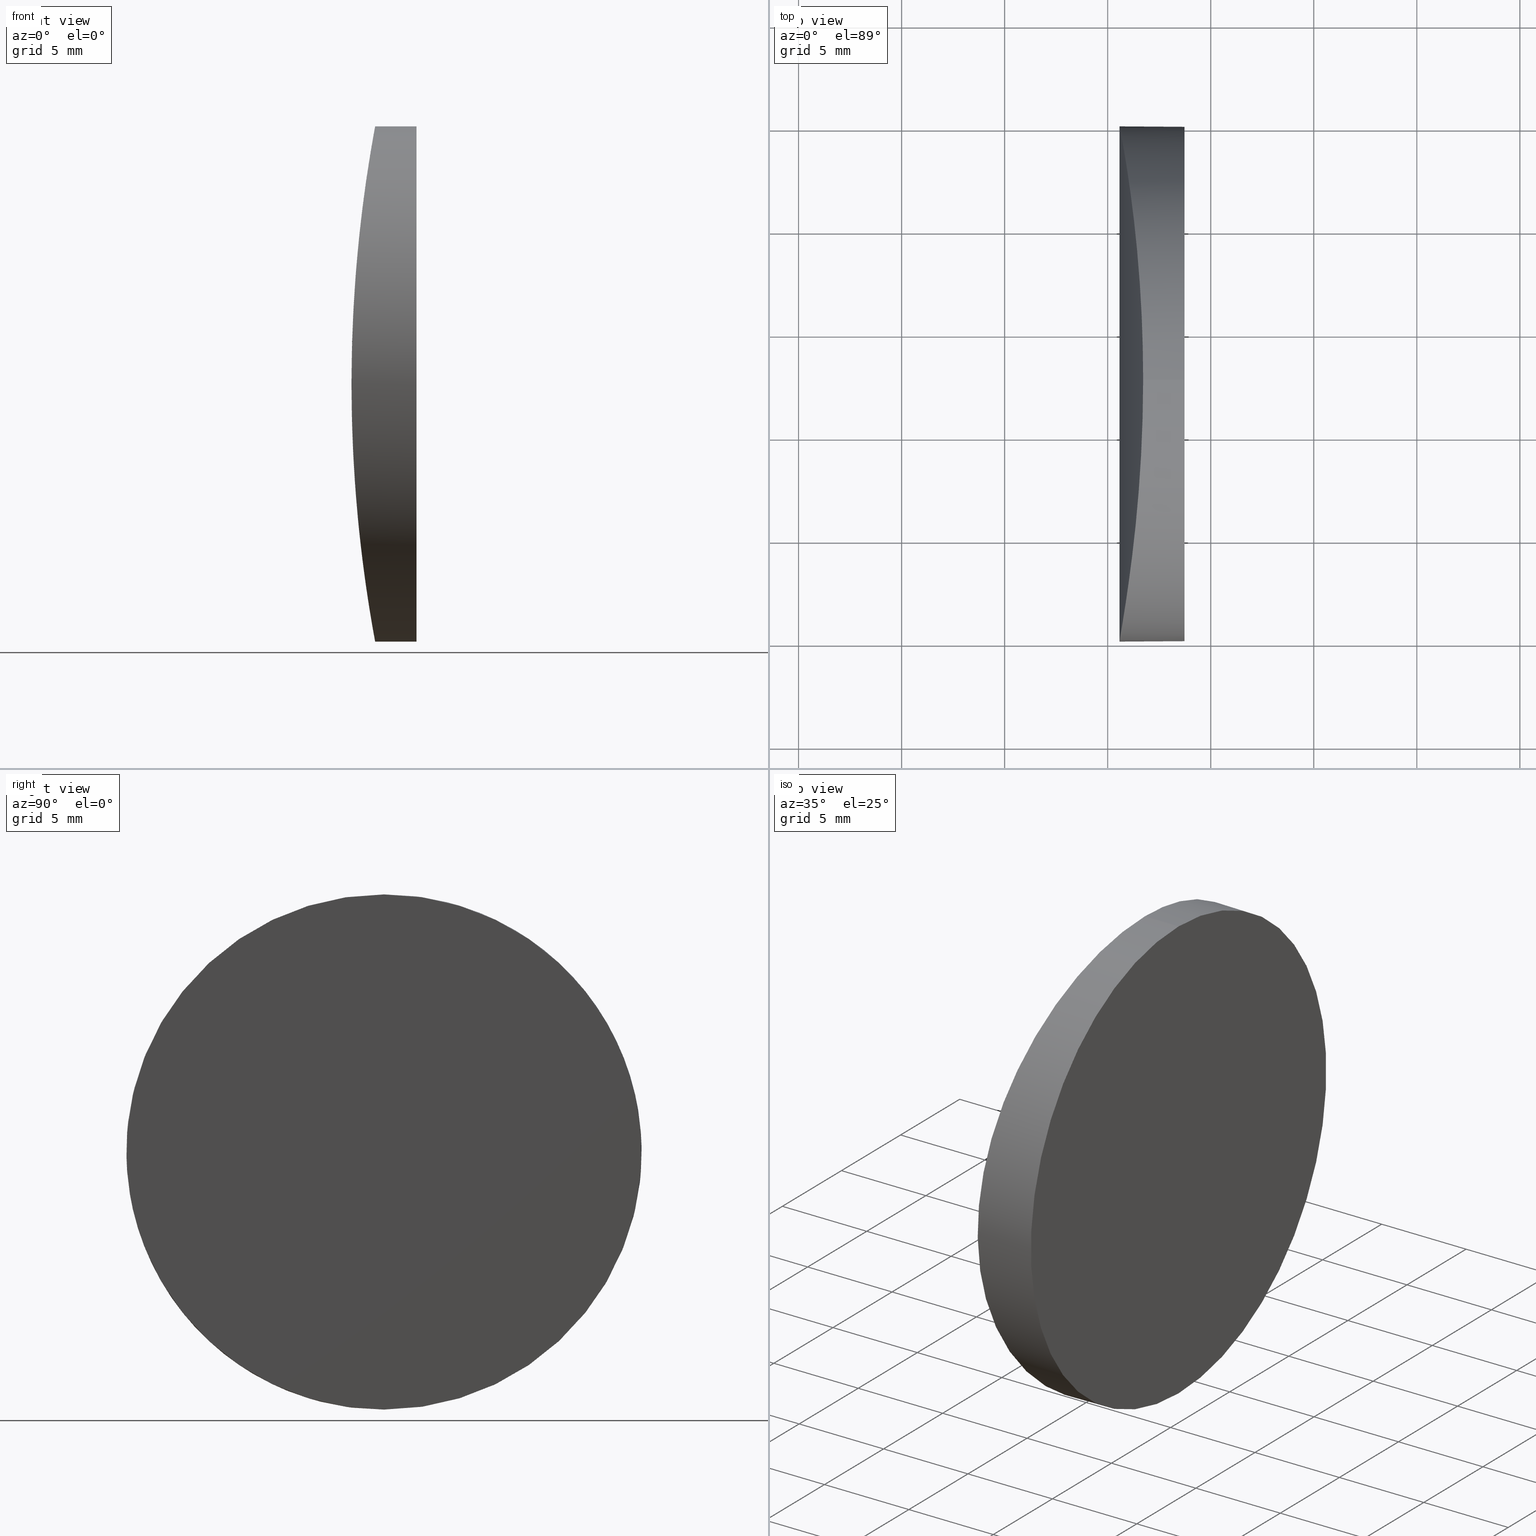
[diagram: canonical four-view strip — front | top / right | iso, engineering-drawing reading convention]
A machine part, canonical four-view strip (front | top / right | iso — engineering-drawing reading convention). The complete STEP part file that produces these views, byte-faithful:
ISO-10303-21;
HEADER;
FILE_DESCRIPTION (( 'STEP AP214' ),
    '1' );
FILE_NAME ('155293.STEP',
    '2019-06-26T06:03:45',
    ( 'user' ),
    ( '΢���й�' ),
    'SwSTEP 2.0',
    'SolidWorks 2016',
    '' );
FILE_SCHEMA (( 'AUTOMOTIVE_DESIGN' ));
ENDSEC;

DATA;
#1 = CARTESIAN_POINT ( 'NONE',  ( -63.66925407923956500, 5.219723881941984400, 10.16926535673829000 ) ) ;
#2 = CARTESIAN_POINT ( 'NONE',  ( -63.50218939228620500, 18.04583908347563100, -11.23226403432084400 ) ) ;
#3 = PRESENTATION_LAYER_ASSIGNMENT (  '', '', ( #18 ) ) ;
#4 = CARTESIAN_POINT ( 'NONE',  ( -63.60137243160642100, 5.883879638067957000, -10.61345877210709300 ) ) ;
#5 = CARTESIAN_POINT ( 'NONE',  ( -73.97479566514874700, 12.50000000000000000, 2.053213034734733700E-014 ) ) ;
#6 = CARTESIAN_POINT ( 'NONE',  ( -63.27939036342439000, 12.50000000000000200, 12.50000000000002300 ) ) ;
#7 = CARTESIAN_POINT ( 'NONE',  ( -61.27479566514875100, 12.50000000000000000, -12.49999999999998900 ) ) ;
#8 = CARTESIAN_POINT ( 'NONE',  ( -64.42480298979890600, -4.030315438344778800E-005, -0.8265353083278852400 ) ) ;
#9 = CARTESIAN_POINT ( 'NONE',  ( -73.97479566514874700, 12.50000000000000000, 2.053213034734733700E-014 ) ) ;
#10 = PRODUCT_RELATED_PRODUCT_CATEGORY ( 'part', '', ( #216 ) ) ;
#11 = CARTESIAN_POINT ( 'NONE',  ( -63.92864118227191700, 21.91118191216399700, -8.266844442842455000 ) ) ;
#12 = CARTESIAN_POINT ( 'NONE',  ( -64.03924777268122200, 2.330791278407728900, -7.280357312064876600 ) ) ;
#13 =( LENGTH_UNIT ( ) NAMED_UNIT ( * ) SI_UNIT ( .MILLI., .METRE. ) );
#14 = ORIENTED_EDGE ( 'NONE', *, *, #38, .F. ) ;
#15 = CARTESIAN_POINT ( 'NONE',  ( -64.14002296422232500, 1.674384151655070600, 6.262799224907127800 ) ) ;
#16 = CARTESIAN_POINT ( 'NONE',  ( -63.27939036342443300, 13.32720339025153900, -12.49999999999998800 ) ) ;
#17 = CARTESIAN_POINT ( 'NONE',  ( -64.40988491407314600, 24.91867997738878800, 1.640399760873783000 ) ) ;
#18 = STYLED_ITEM ( 'NONE', ( #198 ), #26 ) ;
#19 = UNCERTAINTY_MEASURE_WITH_UNIT (LENGTH_MEASURE( 1.000000000000000100E-005 ), #143, 'distance_accuracy_value', 'NONE');
#20 = CARTESIAN_POINT ( 'NONE',  ( -64.36660815299545400, 0.3239808168510469000, 2.857328347124929100 ) ) ;
#21 = CARTESIAN_POINT ( 'NONE',  ( -64.30824109010804100, 24.34247071077418300, 4.021746168580105700 ) ) ;
#22 = FACE_OUTER_BOUND ( 'NONE', #128, .T. ) ;
#23 = CARTESIAN_POINT ( 'NONE',  ( -63.35668912480581100, 15.75803447819766700, 12.07487454253959500 ) ) ;
#24 = ORIENTED_EDGE ( 'NONE', *, *, #229, .T. ) ;
#25 = CARTESIAN_POINT ( 'NONE',  ( -63.33849231470301100, 15.35677883140084000, 12.17614819591511500 ) ) ;
#26 = MANIFOLD_SOLID_BREP ( '�г�-����8', #161 ) ;
#27 = CARTESIAN_POINT ( 'NONE',  ( -64.40988594817905300, 24.91871794587883900, -1.644556802037570500 ) ) ;
#28 = CARTESIAN_POINT ( 'NONE',  ( -63.56537945776942400, 18.76281389152728000, -10.84862809434722800 ) ) ;
#29 = EDGE_CURVE ( 'NONE', #99, #221, #190, .T. ) ;
#30 = CARTESIAN_POINT ( 'NONE',  ( -73.97479566514874700, 12.50000000000000200, 12.50000000000002700 ) ) ;
#31 = DIRECTION ( 'NONE',  ( 1.000000000000000000, -0.0000000000000000000, -2.775557561562888400E-016 ) ) ;
#32 = FACE_OUTER_BOUND ( 'NONE', #98, .T. ) ;
#33 = DIRECTION ( 'NONE',  ( 0.0000000000000000000, 0.0000000000000000000, -1.000000000000000000 ) ) ;
#34 = CARTESIAN_POINT ( 'NONE',  ( -63.27939036342439000, 12.50000000000000200, 12.50000000000002300 ) ) ;
#35 = ORIENTED_EDGE ( 'NONE', *, *, #38, .T. ) ;
#36 = DIRECTION ( 'NONE',  ( 0.0000000000000000000, 0.0000000000000000000, 1.000000000000000000 ) ) ;
#37 = EDGE_LOOP ( 'NONE', ( #79, #225, #191, #116 ) ) ;
#38 = EDGE_CURVE ( 'NONE', #213, #220, #57, .T. ) ;
#39 = DIRECTION ( 'NONE',  ( 1.000000000000000000, 0.0000000000000000000, -2.775557561562891400E-016 ) ) ;
#40 = SHAPE_DEFINITION_REPRESENTATION ( #208, #92 ) ;
#41 = DIRECTION ( 'NONE',  ( 1.000000000000000000, 0.0000000000000000000, 0.0000000000000000000 ) ) ;
#42 = CARTESIAN_POINT ( 'NONE',  ( -61.27479566514875100, 12.50000000000000200, 12.50000000000002300 ) ) ;
#43 = CARTESIAN_POINT ( 'NONE',  ( -64.14244459821546200, 23.34850340800227300, 6.263031121471387400 ) ) ;
#44 = CARTESIAN_POINT ( 'NONE',  ( -63.39771147480247000, 16.52157981857372300, -11.84252702955183300 ) ) ;
#45 = AXIS2_PLACEMENT_3D ( 'NONE', #93, #172, #137 ) ;
#46 = CARTESIAN_POINT ( 'NONE',  ( -64.00305517227356200, 22.42369425961410600, 7.611757039869812200 ) ) ;
#47 = CARTESIAN_POINT ( 'NONE',  ( -63.39886371433635000, 8.459205428573056900, -11.83593579693285000 ) ) ;
#48 = DIRECTION ( 'NONE',  ( 1.000000000000000000, -0.0000000000000000000, -2.775557561562888400E-016 ) ) ;
#49 = SURFACE_STYLE_USAGE ( .BOTH. , #55 ) ;
#50 = MECHANICAL_DESIGN_GEOMETRIC_PRESENTATION_REPRESENTATION (  '', ( #18 ), #88 ) ;
#51 = FILL_AREA_STYLE ('',( #107 ) ) ;
#52 = CARTESIAN_POINT ( 'NONE',  ( -63.66928139319140500, 19.78053173484184800, -10.16908304618968400 ) ) ;
#53 = DIRECTION ( 'NONE',  ( -0.0000000000000000000, -1.000000000000000000, -0.0000000000000000000 ) ) ;
#54 = CARTESIAN_POINT ( 'NONE',  ( -63.27939036342440500, 11.67283001910775700, 12.50000000000002500 ) ) ;
#55 = SURFACE_SIDE_STYLE ('',( #145 ) ) ;
#56 = CARTESIAN_POINT ( 'NONE',  ( -64.14248655158179700, 1.651232120263496100, -6.262576941657268700 ) ) ;
#57 = CIRCLE ( 'NONE', #77, 12.50000000000000500 ) ;
#58 = CARTESIAN_POINT ( 'NONE',  ( 0.0000000000000000000, 0.0000000000000000000, 0.0000000000000000000 ) ) ;
#59 = AXIS2_PLACEMENT_3D ( 'NONE', #67, #53, #153 ) ;
#60 = CARTESIAN_POINT ( 'NONE',  ( -63.70604830730710000, 20.13912192181050600, 9.928141300107865800 ) ) ;
#61 = ORIENTED_EDGE ( 'NONE', *, *, #90, .T. ) ;
#62 = CARTESIAN_POINT ( 'NONE',  ( -63.50517248033487000, 18.04263639835190200, 11.21141310972455300 ) ) ;
#63 = DIRECTION ( 'NONE',  ( 0.0000000000000000000, 0.0000000000000000000, -1.000000000000000000 ) ) ;
#64 = CARTESIAN_POINT ( 'NONE',  ( -64.10671506034044900, 23.11353011659943800, -6.616006811591619300 ) ) ;
#65 = FACE_OUTER_BOUND ( 'NONE', #37, .T. ) ;
#66 = UNCERTAINTY_MEASURE_WITH_UNIT (LENGTH_MEASURE( 1.000000000000000100E-005 ), #13, 'distance_accuracy_value', 'NONE');
#67 = CARTESIAN_POINT ( 'NONE',  ( 4.355204334851265500, 25.00000000000000000, 4.286263797015675000E-017 ) ) ;
#68 = CARTESIAN_POINT ( 'NONE',  ( -63.27939036342440500, 12.50000000000000000, -12.49999999999998900 ) ) ;
#69 = CARTESIAN_POINT ( 'NONE',  ( -63.56535855082432100, 6.237414750581752500, 10.84875748634197900 ) ) ;
#70 = CARTESIAN_POINT ( 'NONE',  ( -64.34978548639053000, 0.4189819356359135700, -3.235362231858952300 ) ) ;
#71 = CARTESIAN_POINT ( 'NONE',  ( -64.10667258621219800, 1.886743798223860200, 6.616445028385983900 ) ) ;
#72 = COLOUR_RGB ( '',1.000000000000000000, 1.000000000000000000, 1.000000000000000000 ) ;
#73 = CARTESIAN_POINT ( 'NONE',  ( -63.56775469695728700, 6.237536554197491900, -10.82581026002381500 ) ) ;
#74 = CARTESIAN_POINT ( 'NONE',  ( -63.35560976077675100, 9.264287206149107900, 12.08092294848720400 ) ) ;
#75 = AXIS2_PLACEMENT_3D ( 'NONE', #9, #120, #205 ) ;
#76 = CYLINDRICAL_SURFACE ( 'NONE', #75, 12.50000000000000500 ) ;
#77 = AXIS2_PLACEMENT_3D ( 'NONE', #193, #136, #33 ) ;
#78 = CARTESIAN_POINT ( 'NONE',  ( -63.27939036342440500, 12.50000000000000000, -12.49999999999998900 ) ) ;
#79 = ORIENTED_EDGE ( 'NONE', *, *, #29, .T. ) ;
#80 = CARTESIAN_POINT ( 'NONE',  ( -64.30827630333882900, 0.6573252816073166200, -4.021146821141137200 ) ) ;
#81 = CARTESIAN_POINT ( 'NONE',  ( -64.28419830355908000, 24.20269618008257200, 4.411851555703810500 ) ) ;
#82 = CYLINDRICAL_SURFACE ( 'NONE', #133, 12.50000000000000500 ) ;
#83 = DIRECTION ( 'NONE',  ( 1.000000000000000000, -0.0000000000000000000, -2.775557561562888400E-016 ) ) ;
#84 = CARTESIAN_POINT ( 'NONE',  ( -63.33849702435303900, 9.643107324679295500, -12.17612205728747400 ) ) ;
#85 = PRODUCT_DEFINITION_CONTEXT ( 'detailed design', #130, 'design' ) ;
#86 =( NAMED_UNIT ( * ) PLANE_ANGLE_UNIT ( ) SI_UNIT ( $, .RADIAN. ) );
#87 = FACE_OUTER_BOUND ( 'NONE', #203, .T. ) ;
#88 =( GEOMETRIC_REPRESENTATION_CONTEXT ( 3 ) GLOBAL_UNCERTAINTY_ASSIGNED_CONTEXT ( ( #66 ) ) GLOBAL_UNIT_ASSIGNED_CONTEXT ( ( #13, #86, #160 ) ) REPRESENTATION_CONTEXT ( 'NONE', 'WORKASPACE' ) );
#89 = CARTESIAN_POINT ( 'NONE',  ( -63.56773361241977900, 18.76223411684006900, 10.82594226971136900 ) ) ;
#90 = EDGE_CURVE ( 'NONE', #99, #220, #134, .T. ) ;
#91 = CARTESIAN_POINT ( 'NONE',  ( -63.27939036342441900, 11.67279660939772900, -12.49999999999999300 ) ) ;
#92 = ADVANCED_BREP_SHAPE_REPRESENTATION ( '155293', ( #26, #165 ), #112 ) ;
#93 = CARTESIAN_POINT ( 'NONE',  ( -61.27479566514875100, 12.50000000000000000, 1.700717224416246800E-014 ) ) ;
#94 = EDGE_CURVE ( 'NONE', #221, #213, #123, .T. ) ;
#95 = CARTESIAN_POINT ( 'NONE',  ( -63.39770219337039200, 8.478578011010057500, 11.84258002962375600 ) ) ;
#96 = VECTOR ( 'NONE', #48, 1000.000000000000000 ) ;
#97 = COLOUR_RGB ( '',1.000000000000000000, 1.000000000000000000, 1.000000000000000000 ) ;
#98 = EDGE_LOOP ( 'NONE', ( #207, #127 ) ) ;
#99 = VERTEX_POINT ( 'NONE', #68 ) ;
#100 = CARTESIAN_POINT ( 'NONE',  ( -63.33779046334029100, 15.33949622635363500, -12.18004070880431100 ) ) ;
#101 = CARTESIAN_POINT ( 'NONE',  ( -64.28340615413418400, 24.19804018528283500, -4.423941615331505900 ) ) ;
#102 = CIRCLE ( 'NONE', #45, 12.50000000000000500 ) ;
#103 = APPLICATION_PROTOCOL_DEFINITION ( 'draft international standard', 'automotive_design', 1998, #178 ) ;
#104 = CARTESIAN_POINT ( 'NONE',  ( -63.29455726878305200, 10.85982574767233400, 12.41870751892292400 ) ) ;
#105 = EDGE_CURVE ( 'NONE', #220, #213, #102, .T. ) ;
#106 = CARTESIAN_POINT ( 'NONE',  ( -63.81685627534960800, 3.951740333167176500, 9.129211868709370800 ) ) ;
#107 = FILL_AREA_STYLE_COLOUR ( '', #97 ) ;
#108 = CARTESIAN_POINT ( 'NONE',  ( -64.42479798006691300, 25.00001273760502600, -0.8269880553409527700 ) ) ;
#109 = CARTESIAN_POINT ( 'NONE',  ( -63.77948693437686200, 4.253963614421485900, 9.403266258142096500 ) ) ;
#110 = CARTESIAN_POINT ( 'NONE',  ( -63.29455849375029400, 14.14023993733877500, -12.41870101493660500 ) ) ;
#111 = CARTESIAN_POINT ( 'NONE',  ( -63.70558249996629000, 4.888714543933381200, 9.924054922261724700 ) ) ;
#112 =( GEOMETRIC_REPRESENTATION_CONTEXT ( 3 ) GLOBAL_UNCERTAINTY_ASSIGNED_CONTEXT ( ( #19 ) ) GLOBAL_UNIT_ASSIGNED_CONTEXT ( ( #143, #142, #180 ) ) REPRESENTATION_CONTEXT ( 'NONE', 'WORKASPACE' ) );
#113 = PLANE ( 'NONE',  #115 ) ;
#114 = FILL_AREA_STYLE ('',( #164 ) ) ;
#115 = AXIS2_PLACEMENT_3D ( 'NONE', #117, #39, #222 ) ;
#116 = ORIENTED_EDGE ( 'NONE', *, *, #90, .F. ) ;
#117 = CARTESIAN_POINT ( 'NONE',  ( -61.27479566514875800, 25.00000000000000000, -12.50000000000000000 ) ) ;
#118 = ORIENTED_EDGE ( 'NONE', *, *, #105, .T. ) ;
#119 = CARTESIAN_POINT ( 'NONE',  ( -63.47604420815388000, 17.67495626681045500, 11.38574584380290800 ) ) ;
#120 = DIRECTION ( 'NONE',  ( 1.000000000000000000, -0.0000000000000000000, -2.775557561562888400E-016 ) ) ;
#121 = CARTESIAN_POINT ( 'NONE',  ( -64.34867903400200400, 0.4252731308358381200, 3.258582595066641400 ) ) ;
#122 = CARTESIAN_POINT ( 'NONE',  ( -63.27939036342440500, 12.50000000000000000, -12.49999999999998900 ) ) ;
#123 = LINE ( 'NONE', #30, #96 ) ;
#124 = SURFACE_SIDE_STYLE ('',( #211 ) ) ;
#125 = CARTESIAN_POINT ( 'NONE',  ( -63.35561578063200700, 15.73584057680002200, -12.08088930684987400 ) ) ;
#126 = CARTESIAN_POINT ( 'NONE',  ( -63.27939036342437600, 13.32716998054153900, 12.50000000000002000 ) ) ;
#127 = ORIENTED_EDGE ( 'NONE', *, *, #229, .F. ) ;
#128 = EDGE_LOOP ( 'NONE', ( #118, #35 ) ) ;
#129 = ORIENTED_EDGE ( 'NONE', *, *, #94, .F. ) ;
#130 = APPLICATION_CONTEXT ( 'automotive_design' ) ;
#131 =( NAMED_UNIT ( * ) PLANE_ANGLE_UNIT ( ) SI_UNIT ( $, .RADIAN. ) );
#132 = CARTESIAN_POINT ( 'NONE',  ( -63.42206007396691800, 8.088495309295364400, 11.70282594395198600 ) ) ;
#133 = AXIS2_PLACEMENT_3D ( 'NONE', #5, #31, #63 ) ;
#134 = LINE ( 'NONE', #202, #232 ) ;
#135 = CARTESIAN_POINT ( 'NONE',  ( -63.60134901435086600, 19.11587947532923000, 10.61360834592629700 ) ) ;
#136 = DIRECTION ( 'NONE',  ( 1.000000000000000000, -4.930380657631322700E-032, -2.510324564891253900E-016 ) ) ;
#137 = DIRECTION ( 'NONE',  ( 0.0000000000000000000, 0.0000000000000000000, -1.000000000000000000 ) ) ;
#138 =( LENGTH_UNIT ( ) NAMED_UNIT ( * ) SI_UNIT ( .MILLI., .METRE. ) );
#139 = CARTESIAN_POINT ( 'NONE',  ( -64.36734304063986700, 0.3198422388486890600, -2.838996446765032800 ) ) ;
#140 = ADVANCED_FACE ( 'NONE', ( #87 ), #76, .T. ) ;
#141 = B_SPLINE_CURVE_WITH_KNOTS ( 'NONE', 3,
 ( #6, #54, #104, #170, #74, #95, #132, #218, #69, #1, #111, #109, #106, #201, #177, #71, #15, #188, #204, #224, #189, #121, #20, #152, #210, #8, #157, #139, #70, #80, #159, #176, #56, #12, #155, #174, #206, #217, #231, #4, #73, #168, #219, #209, #47, #144, #84, #151, #91, #78 ),
 .UNSPECIFIED., .F., .F.,
 ( 4, 2, 2, 2, 2, 2, 2, 2, 2, 2, 2, 2, 2, 2, 2, 2, 2, 2, 2, 2, 2, 2, 2, 2, 4 ),
 ( 0.01956771102502792600, 0.02201365118599540900, 0.02323662126647915000, 0.02445959134696289200, 0.02690553150793036800, 0.02812850158841410900, 0.02935147166889784400, 0.03179741182986531300, 0.03302038191034904800, 0.03424335199083278200, 0.03546632207131651700, 0.03668929215180025800, 0.03913523231276772700, 0.04158117247373520300, 0.04280414255421893800, 0.04402711263470266600, 0.04647305279567013500, 0.04769602287615386200, 0.04891899295663759700, 0.05136493311760506600, 0.05258790319808880100, 0.05381087327857253500, 0.05503384335905627700, 0.05625681343954001100, 0.05870275360050748700 ),
 .UNSPECIFIED. ) ;
#142 =( NAMED_UNIT ( * ) PLANE_ANGLE_UNIT ( ) SI_UNIT ( $, .RADIAN. ) );
#143 =( LENGTH_UNIT ( ) NAMED_UNIT ( * ) SI_UNIT ( .MILLI., .METRE. ) );
#144 = CARTESIAN_POINT ( 'NONE',  ( -63.35669522239409400, 9.241837142651069900, -12.07484044418731500 ) ) ;
#145 = SURFACE_STYLE_FILL_AREA ( #114 ) ;
#146 = CARTESIAN_POINT ( 'NONE',  ( -63.70561211264763600, 20.11155041863422400, -9.923852317177075800 ) ) ;
#147 = CARTESIAN_POINT ( 'NONE',  ( -63.42207114749530200, 16.91167584200092100, -11.70276197673998600 ) ) ;
#148 = STYLED_ITEM ( 'NONE', ( #162 ), #92 ) ;
#149 = CARTESIAN_POINT ( 'NONE',  ( -64.36663596605207300, 24.67617603311252900, -2.856662009104586900 ) ) ;
#150 = PRESENTATION_LAYER_ASSIGNMENT (  '', '', ( #148 ) ) ;
#151 = CARTESIAN_POINT ( 'NONE',  ( -63.29456707272383700, 10.85522047256535500, -12.41868901113105700 ) ) ;
#152 = CARTESIAN_POINT ( 'NONE',  ( -64.40986819891281800, 0.08137983878737692400, 1.645280224856109600 ) ) ;
#153 = DIRECTION ( 'NONE',  ( 0.0000000000000000000, 0.0000000000000000000, -1.000000000000000000 ) ) ;
#154 = CARTESIAN_POINT ( 'NONE',  ( -63.81689095474066400, 21.04853629386710900, -9.128953540189369800 ) ) ;
#155 = CARTESIAN_POINT ( 'NONE',  ( -64.00309648228727600, 2.576021174412165500, -7.611387042287767600 ) ) ;
#156 = MECHANICAL_DESIGN_GEOMETRIC_PRESENTATION_REPRESENTATION (  '', ( #148 ), #167 ) ;
#157 = CARTESIAN_POINT ( 'NONE',  ( -64.40990250473230100, 0.08122309166207911100, -1.639681598984615000 ) ) ;
#158 = CARTESIAN_POINT ( 'NONE',  ( -63.29456584646452200, 14.14471347764872000, 12.41869551515563200 ) ) ;
#159 = CARTESIAN_POINT ( 'NONE',  ( -64.28423536943167000, 0.7970865624196332700, -4.411276970342317600 ) ) ;
#160 =( NAMED_UNIT ( * ) SI_UNIT ( $, .STERADIAN. ) SOLID_ANGLE_UNIT ( ) );
#161 = CLOSED_SHELL ( 'NONE', ( #228, #194, #196, #140 ) ) ;
#162 = PRESENTATION_STYLE_ASSIGNMENT (( #227 ) ) ;
#163 = CARTESIAN_POINT ( 'NONE',  ( -64.36731573334691300, 24.68000380812554800, 2.839654586937510100 ) ) ;
#164 = FILL_AREA_STYLE_COLOUR ( '', #72 ) ;
#165 = AXIS2_PLACEMENT_3D ( 'NONE', #58, #36, #41 ) ;
#166 = CARTESIAN_POINT ( 'NONE',  ( -64.42479334969202400, 24.99998725943024900, 0.8273730706556347000 ) ) ;
#167 =( GEOMETRIC_REPRESENTATION_CONTEXT ( 3 ) GLOBAL_UNCERTAINTY_ASSIGNED_CONTEXT ( ( #200 ) ) GLOBAL_UNIT_ASSIGNED_CONTEXT ( ( #138, #131, #169 ) ) REPRESENTATION_CONTEXT ( 'NONE', 'WORKASPACE' ) );
#168 = CARTESIAN_POINT ( 'NONE',  ( -63.50518929974051500, 6.957156955585300100, -11.21131157273907200 ) ) ;
#169 =( NAMED_UNIT ( * ) SI_UNIT ( $, .STERADIAN. ) SOLID_ANGLE_UNIT ( ) );
#170 = CARTESIAN_POINT ( 'NONE',  ( -63.33778583772362200, 9.660616239099047300, 12.18006637350430300 ) ) ;
#171 = CARTESIAN_POINT ( 'NONE',  ( -63.78032919907841600, 20.76663862969459700, 9.411362074271707500 ) ) ;
#172 = DIRECTION ( 'NONE',  ( 1.000000000000000000, -4.930380657631322700E-032, -2.510324564891253900E-016 ) ) ;
#173 = CARTESIAN_POINT ( 'NONE',  ( -64.34975530999246000, 24.58084660563092100, 3.236000629055741500 ) ) ;
#174 = CARTESIAN_POINT ( 'NONE',  ( -63.92942577885280300, 3.096874195795616700, -8.246198733266586700 ) ) ;
#175 = CARTESIAN_POINT ( 'NONE',  ( -64.00267382638792000, 22.42799898044975700, -7.639313248725200900 ) ) ;
#176 = CARTESIAN_POINT ( 'NONE',  ( -64.20506074944698600, 1.267584922745903100, -5.545542469277579700 ) ) ;
#177 = CARTESIAN_POINT ( 'NONE',  ( -64.00263271138719300, 2.572283835698838200, 7.639676683855507900 ) ) ;
#178 = APPLICATION_CONTEXT ( 'automotive_design' ) ;
#179 = CARTESIAN_POINT ( 'NONE',  ( -64.03920620228390700, 22.66892924211383700, 7.280746824630796300 ) ) ;
#180 =( NAMED_UNIT ( * ) SI_UNIT ( $, .STERADIAN. ) SOLID_ANGLE_UNIT ( ) );
#181 = CARTESIAN_POINT ( 'NONE',  ( -64.20501975530429200, 23.73216544547042200, 5.546042511297672600 ) ) ;
#182 = CARTESIAN_POINT ( 'NONE',  ( -64.14006495398602700, 23.32588136911521200, -6.262341207684534600 ) ) ;
#183 = CARTESIAN_POINT ( 'NONE',  ( -63.92938675002083900, 21.90284236510812500, 8.246520990650152400 ) ) ;
#184 = PRODUCT_DEFINITION_FORMATION_WITH_SPECIFIED_SOURCE ( '�κ�', '', #216, .NOT_KNOWN. ) ;
#185 = CARTESIAN_POINT ( 'NONE',  ( -63.89207731539488600, 21.62875942930842400, 8.548743408452653000 ) ) ;
#186 = PRODUCT_CONTEXT ( 'NONE', #178, 'mechanical' ) ;
#187 = CARTESIAN_POINT ( 'NONE',  ( -64.23086979591732900, 23.88573049870388900, -5.174992232191076600 ) ) ;
#188 = CARTESIAN_POINT ( 'NONE',  ( -64.20201093744955800, 1.288864391294640900, 5.543198624499475500 ) ) ;
#189 = CARTESIAN_POINT ( 'NONE',  ( -64.30709058854841900, 0.6641990912385145100, 4.041188728820646500 ) ) ;
#190 = B_SPLINE_CURVE_WITH_KNOTS ( 'NONE', 3,
 ( #122, #16, #110, #100, #125, #44, #147, #2, #28, #52, #146, #199, #154, #11, #175, #64, #182, #230, #187, #101, #215, #197, #149, #27, #108, #166, #17, #163, #173, #21, #81, #181, #43, #179, #46, #183, #185, #171, #60, #135, #89, #62, #119, #192, #223, #23, #25, #158, #126, #214 ),
 .UNSPECIFIED., .F., .F.,
 ( 4, 2, 2, 2, 2, 2, 2, 2, 2, 2, 2, 2, 2, 2, 2, 2, 2, 2, 2, 2, 2, 2, 2, 2, 4 ),
 ( -0.01956733153385827400, -0.01712139137392789500, -0.01589842129396270100, -0.01467545121399750600, -0.01222951105406712800, -0.01100654097410193300, -0.009783570894136738700, -0.007337630734206353200, -0.006114660654241158700, -0.004891690574275967700, -0.003668720494310773200, -0.002445750414345582200, 1.897455848068330100E-007, 0.002446129905515199300, 0.003669099985480390300, 0.004892070065445588300, 0.007338010225375980700, 0.008560980305341175200, 0.009783950385306362800, 0.01222989054523676200, 0.01345286062520196000, 0.01467583070516715100, 0.01589880078513234900, 0.01712177086509753300, 0.01956771102502792200 ),
 .UNSPECIFIED. ) ;
#191 = ORIENTED_EDGE ( 'NONE', *, *, #105, .F. ) ;
#192 = CARTESIAN_POINT ( 'NONE',  ( -63.42288580864048700, 16.92395716070514000, 11.69803333143318200 ) ) ;
#193 = CARTESIAN_POINT ( 'NONE',  ( -61.27479566514875100, 12.50000000000000000, 1.700717224416246800E-014 ) ) ;
#194 = ADVANCED_FACE ( 'NONE', ( #32 ), #212, .T. ) ;
#195 = APPLICATION_PROTOCOL_DEFINITION ( 'draft international standard', 'automotive_design', 1998, #130 ) ;
#196 = ADVANCED_FACE ( 'NONE', ( #22 ), #113, .T. ) ;
#197 = CARTESIAN_POINT ( 'NONE',  ( -64.34870955135211500, 24.57490036712184200, -3.257941997526920800 ) ) ;
#198 = PRESENTATION_STYLE_ASSIGNMENT (( #49 ) ) ;
#199 = CARTESIAN_POINT ( 'NONE',  ( -63.77952000683108500, 20.74630980453166300, -9.403027129400225400 ) ) ;
#200 = UNCERTAINTY_MEASURE_WITH_UNIT (LENGTH_MEASURE( 1.000000000000000100E-005 ), #138, 'distance_accuracy_value', 'NONE');
#201 = CARTESIAN_POINT ( 'NONE',  ( -63.92860221923469100, 3.089101027070937400, 8.267163432693280400 ) ) ;
#202 = CARTESIAN_POINT ( 'NONE',  ( -73.97479566514874700, 12.50000000000000000, -12.49999999999998600 ) ) ;
#203 = EDGE_LOOP ( 'NONE', ( #129, #24, #61, #14 ) ) ;
#204 = CARTESIAN_POINT ( 'NONE',  ( -64.23083019034933700, 1.114507929533747700, 5.175515468007818100 ) ) ;
#205 = DIRECTION ( 'NONE',  ( 0.0000000000000000000, 0.0000000000000000000, -1.000000000000000000 ) ) ;
#206 = CARTESIAN_POINT ( 'NONE',  ( -63.89211496638149200, 3.370959005387023300, -8.548443540948460000 ) ) ;
#207 = ORIENTED_EDGE ( 'NONE', *, *, #29, .F. ) ;
#208 = PRODUCT_DEFINITION_SHAPE ( 'NONE', 'NONE',  #226 ) ;
#209 = CARTESIAN_POINT ( 'NONE',  ( -63.42289679433783800, 8.075873473057301400, -11.69796984756620100 ) ) ;
#210 = CARTESIAN_POINT ( 'NONE',  ( -64.42478833510134000, 4.033285360287815900E-005, 0.8277538982753236400 ) ) ;
#211 = SURFACE_STYLE_FILL_AREA ( #51 ) ;
#212 = CYLINDRICAL_SURFACE ( 'NONE', #59, 68.78000000000012900 ) ;
#213 = VERTEX_POINT ( 'NONE', #42 ) ;
#214 = CARTESIAN_POINT ( 'NONE',  ( -63.27939036342439000, 12.50000000000000200, 12.50000000000002300 ) ) ;
#215 = CARTESIAN_POINT ( 'NONE',  ( -64.30712557681837900, 24.33600373825680300, -4.040596545454596900 ) ) ;
#216 = PRODUCT ( '155293', '155293', '', ( #186 ) ) ;
#217 = CARTESIAN_POINT ( 'NONE',  ( -63.78036222347093100, 4.233088791377650900, -9.411125590766788600 ) ) ;
#218 = CARTESIAN_POINT ( 'NONE',  ( -63.50217270981760000, 6.954368299694172300, 11.23236412723254100 ) ) ;
#219 = CARTESIAN_POINT ( 'NONE',  ( -63.47605898818179100, 7.324849099160265300, -11.38565796230081000 ) ) ;
#220 = VERTEX_POINT ( 'NONE', #7 ) ;
#221 = VERTEX_POINT ( 'NONE', #34 ) ;
#222 = DIRECTION ( 'NONE',  ( -2.775557561562891400E-016, 0.0000000000000000000, -1.000000000000000000 ) ) ;
#223 = CARTESIAN_POINT ( 'NONE',  ( -63.39885448382995000, 16.54063846124482100, 11.83598853939562500 ) ) ;
#224 = CARTESIAN_POINT ( 'NONE',  ( -64.28336936931057700, 0.8021755041248248600, 4.424510380815120500 ) ) ;
#225 = ORIENTED_EDGE ( 'NONE', *, *, #94, .T. ) ;
#226 = PRODUCT_DEFINITION ( 'δ֪', '', #184, #85 ) ;
#227 = SURFACE_STYLE_USAGE ( .BOTH. , #124 ) ;
#228 = ADVANCED_FACE ( 'NONE', ( #65 ), #82, .T. ) ;
#229 = EDGE_CURVE ( 'NONE', #221, #99, #141, .T. ) ;
#230 = CARTESIAN_POINT ( 'NONE',  ( -64.20205156693118900, 23.71138391325093800, -5.542697499351518800 ) ) ;
#231 = CARTESIAN_POINT ( 'NONE',  ( -63.70607759338771100, 4.860615926152521000, -9.927942081589778300 ) ) ;
#232 = VECTOR ( 'NONE', #83, 1000.000000000000000 ) ;
ENDSEC;
END-ISO-10303-21;
